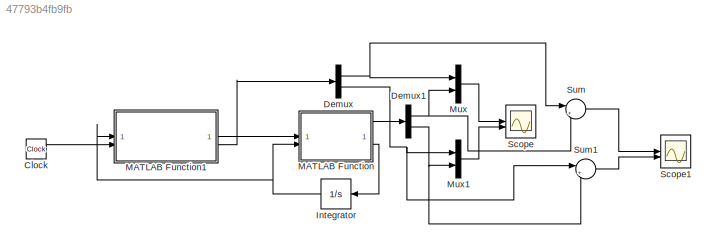
MODEL slx_47793b4fb9fb
KIND model
CONFIG AbsTol = auto
CONFIG EnableMultiTasking = off
CONFIG FixedStep = auto
CONFIG MaxStep = auto
CONFIG MinStep = auto
CONFIG RelTol = 1e-3
CONFIG SampleTimeConstraint = Unconstrained
CONFIG SolverName = VariableStepAuto
CONFIG StartTime = 0.0
CONFIG StopTime = 30
BLOCK [Clock] Clock
BLOCK [Demux] Demux
  Outputs = 2
BLOCK [Demux] Demux1
  Outputs = 2
BLOCK [Integrator] Integrator
  InitialCondition = [0;0;0;0;0;]
  NameLocation = top
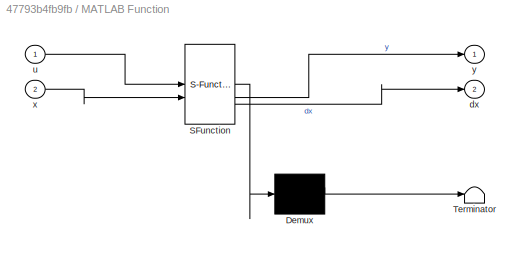
BLOCK [SubSystem] MATLAB Function
  ErrorFcn = Stateflow.Translate.translate
  LibrarySourceBlock = simulink/User-Defined\nFunctions/MATLAB Function
  PermitHierarchicalResolution = ExplicitOnly
  SFBlockType = MATLAB Function
  TreatAsAtomicUnit = on
BLOCK [Demux] MATLAB Function/ Demux 
  Outputs = 1
BLOCK [S-Function] MATLAB Function/ SFunction 
  EnableBusSupport = on
  FunctionName = sf_sfun
  PortCounts = [2 3]
  SFcnIsStateOwnerBlock = off
  SFunctionDeploymentMode = off
  Tag = Stateflow S-Function 2
BLOCK [Terminator] MATLAB Function/ Terminator 
BLOCK [Outport] MATLAB Function/dx
  Port = 2
BLOCK [Inport] MATLAB Function/u
BLOCK [Inport] MATLAB Function/x
  Port = 2
BLOCK [Outport] MATLAB Function/y
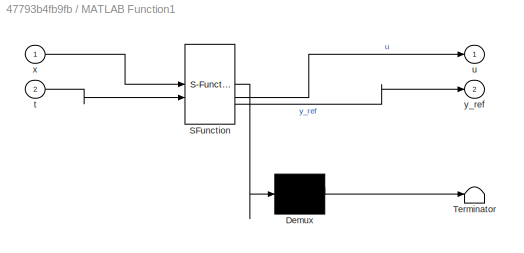
BLOCK [SubSystem] MATLAB Function1
  ErrorFcn = Stateflow.Translate.translate
  LibrarySourceBlock = simulink/User-Defined\nFunctions/MATLAB Function
  PermitHierarchicalResolution = ExplicitOnly
  SFBlockType = MATLAB Function
  TreatAsAtomicUnit = on
BLOCK [Demux] MATLAB Function1/ Demux 
  Outputs = 1
BLOCK [S-Function] MATLAB Function1/ SFunction 
  EnableBusSupport = on
  FunctionName = sf_sfun
  PortCounts = [2 3]
  SFcnIsStateOwnerBlock = off
  SFunctionDeploymentMode = off
  Tag = Stateflow S-Function 1
BLOCK [Terminator] MATLAB Function1/ Terminator 
BLOCK [Inport] MATLAB Function1/t
  Port = 2
BLOCK [Outport] MATLAB Function1/u
BLOCK [Inport] MATLAB Function1/x
BLOCK [Outport] MATLAB Function1/y_ref
  Port = 2
BLOCK [Mux] Mux
  DisplayOption = bar
  Inputs = 2
BLOCK [Mux] Mux1
  DisplayOption = bar
  Inputs = 2
BLOCK [Scope] Scope
  Floating = off
  NumInputPorts = 2
  ScopeSpecificationString = Simulink.scopes.TimeScopeBlockCfg('CurrentConfiguration', extmgr.ConfigurationSet(extmgr.Configuration('Core','General UI',true),extmgr.Configuration('Core','Source UI',true),extmgr.Configuration('Sources','WiredSimulink',true),extmgr.Configuration('Visuals','Time Domain',true,'SerializedDisplays',{struct('MinYLimReal','-60.99962','MaxYLimReal','8.99637','YLabelReal','','MinYLimMag','0.00000','Max...<+1977ch>
BLOCK [Scope] Scope1
  Floating = off
  NumInputPorts = 2
  ScopeSpecificationString = Simulink.scopes.TimeScopeBlockCfg('CurrentConfiguration', extmgr.ConfigurationSet(extmgr.Configuration('Core','General UI',true),extmgr.Configuration('Core','Source UI',true),extmgr.Configuration('Sources','WiredSimulink',true,'DataLoggingVariableName','ScopeData1'),extmgr.Configuration('Visuals','Time Domain',true,'SerializedDisplays',{struct('MinYLimReal','-0.000005','MaxYLimReal','0.000025','YL...<+1989ch>
BLOCK [Sum] Sum
  Inputs = |+-
BLOCK [Sum] Sum1
  Inputs = |+-
LINE Clock:1 -> MATLAB Function1:2
NET Demux1:1 -> Mux:2, Sum:2
NET Demux1:2 -> Mux1:2, Sum1:2
NET Demux:1 -> Mux:1, Sum:1
NET Demux:2 -> Mux1:1, Sum1:1
NET Integrator:1 -> MATLAB Function1:1, MATLAB Function:2
LINE MATLAB Function1:1 -> MATLAB Function:1
LINE MATLAB Function1:2 -> Demux:1
LINE MATLAB Function:1 -> Demux1:1
LINE MATLAB Function:2 -> Integrator:1
LINE Mux1:1 -> Scope:2
LINE Mux:1 -> Scope:1
LINE Sum1:1 -> Scope1:2
LINE Sum:1 -> Scope1:1
note: NET lines group one-source signal fan-out (src -> all destinations, sorted); 1:1 wires keep LINE
CHART MATLAB Function1 states=1 transitions=1
  STATE_LABEL 'eML_blk_kernel()'
  STATE_LABEL 'SCRIPT:\nfunction [u, y_ref]  = controller(x,t)\n    y10 = 0;\n    y20 = 0;\n    y1T = 2;\n    y2T = 3;\n    T = 10;\n    \n    y1_ref = (3*t^2/T^2 - 2*t^3/T^3)*(y1T - y10)+ y10;\n    y2_ref = (3*t^2/T^2 - 2*t^3/T^3)*(y2T - y20)+ y20;\n    y_ref = [y1_ref; y2_ref;];\n    y_ref_dot = [3*t/25 - 3*t^2/250; 9*t/50 - 9*t^2/500];\n    \n    v = [-0.1*(x(3)-y_ref(1)); -0.1*(x(2)-y_ref(2))]; % introduced new input of ...<+95ch>'
CHART MATLAB Function states=1 transitions=1
  STATE_LABEL 'eML_blk_kernel()'
  STATE_LABEL 'SCRIPT:\nfunction [y, dx] = model(u, x)\n    x1 = x(1);\n    x2 = x(2);\n    x3 = x(3);\n    x4 = x(4);\n    x5 = x(5);\n    \n    f = [ -x1 + x2^2;\n           x1*x3 + x4;\n          -x1 + x3;\n           x5;\n          -x5 + x3^2;];\n    g = [ 0 0; 0 1; 1 0; 1 0; x2 0;];\n    dx = f + g*u;\n\n    y = [x3; x2;];\nend'
CHART  states=0 transitions=0
CHART  states=0 transitions=0
